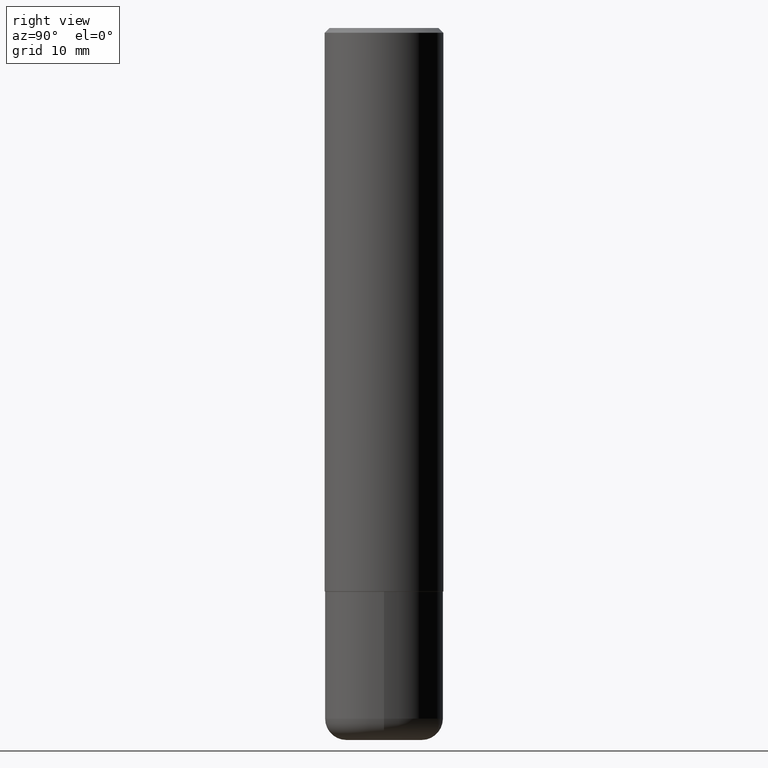
[diagram: clean part render]
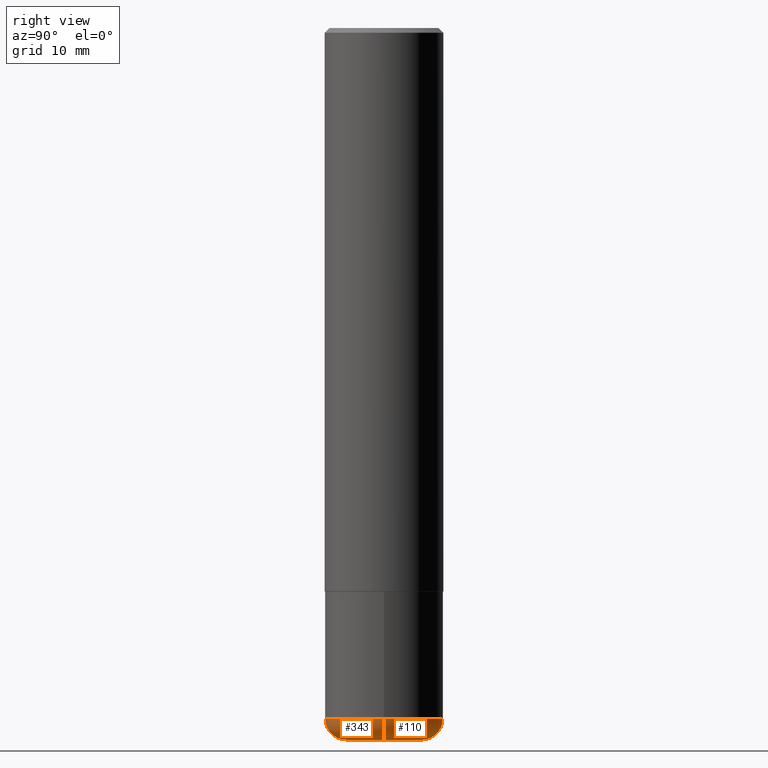
[diagram: same view with one multi-face feature highlighted, each face labeled with its STEP entity id]
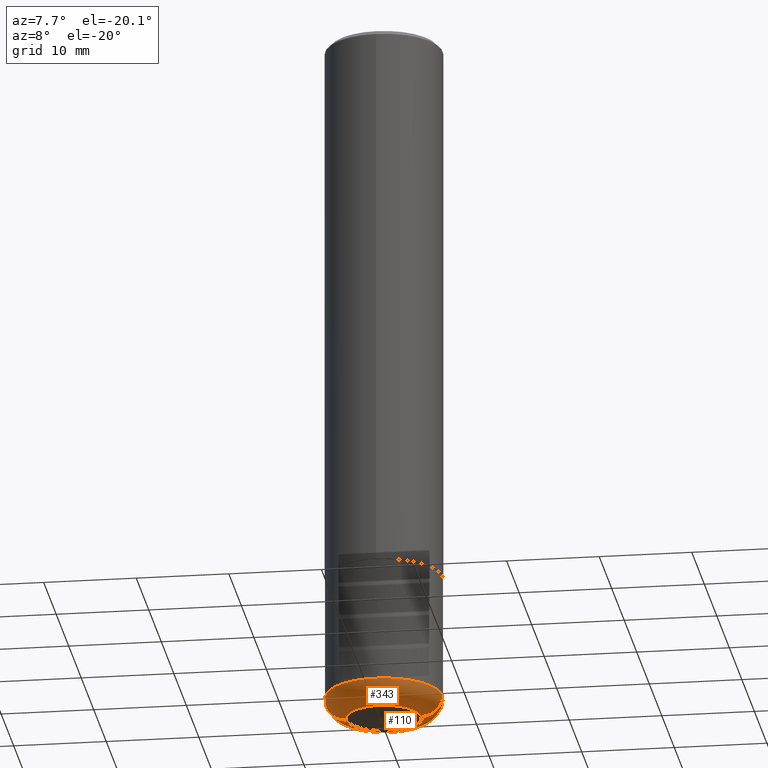
[diagram: same view with one multi-face feature highlighted, each face labeled with its STEP entity id]
A machine part, right view. The highlighted faces form ONE feature: a constant-radius fillet chain: 2 tangent blend faces with common blend radius 2.286 mm. The faces share edges in the B-rep.
A second angle (auxiliary view) of the same feature is appended — it is thin or edge-on in the first view.
Their STEP definitions:
[1] entity #110 (Torus):
#6 = CARTESIAN_POINT ( 'NONE',  ( 7.116314225998749245E-29, -1.016021069603355467E-14, -2.910000000000000586 ) ) ;
#12 = CARTESIAN_POINT ( 'NONE',  ( 0.1600000000000000033, -1.127748472446335797E-14, -2.910000000000000586 ) ) ;
#27 = DIRECTION ( 'NONE',  ( -6.982962677686266711E-15, -1.000000000000000000, 3.491481338843145583E-15 ) ) ;
#31 = DIRECTION ( 'NONE',  ( -2.445468806185136597E-29, 3.491481338843145583E-15, 1.000000000000000000 ) ) ;
#50 = VERTEX_POINT ( 'NONE', #60 ) ;
#51 = TOROIDAL_SURFACE ( 'NONE', #334, 0.1600000000000000033, 0.08999999999999964972 ) ;
#59 = EDGE_CURVE ( 'NONE', #402, #222, #249, .T. ) ;
#60 = CARTESIAN_POINT ( 'NONE',  ( 0.2499999999999998335, -1.190595136545512292E-14, -2.910000000000000586 ) ) ;
#61 = CARTESIAN_POINT ( 'NONE',  ( 0.1600000000000000033, -1.159171804495923808E-14, -2.999999999999999556 ) ) ;
#71 = ORIENTED_EDGE ( 'NONE', *, *, #286, .F. ) ;
#110 = ADVANCED_FACE ( 'NONE', ( #387 ), #51, .T. ) ;
#111 = AXIS2_PLACEMENT_3D ( 'NONE', #115, #204, #280 ) ;
#112 = AXIS2_PLACEMENT_3D ( 'NONE', #12, #27, #121 ) ;
#115 = CARTESIAN_POINT ( 'NONE',  ( 7.336406418555408669E-29, -1.047444401652943478E-14, -2.999999999999999556 ) ) ;
#121 = DIRECTION ( 'NONE',  ( 1.000000000000000000, -6.982962677686273810E-15, 0.000000000000000000 ) ) ;
#135 = CARTESIAN_POINT ( 'NONE',  ( -0.1600000000000000033, -9.023342318817394938E-15, -2.910000000000000586 ) ) ;
#138 = CARTESIAN_POINT ( 'NONE',  ( -0.1600000000000000033, -8.860714747973291991E-15, -2.999999999999999556 ) ) ;
#154 = EDGE_CURVE ( 'NONE', #222, #187, #157, .T. ) ;
#157 = CIRCLE ( 'NONE', #164, 0.08999999999999964972 ) ;
#164 = AXIS2_PLACEMENT_3D ( 'NONE', #135, #336, #179 ) ;
#171 = CARTESIAN_POINT ( 'NONE',  ( -0.2499999999999998335, -8.383853856633305780E-15, -2.910000000000000586 ) ) ;
#179 = DIRECTION ( 'NONE',  ( -1.000000000000000000, 7.105427357600996337E-15, 0.000000000000000000 ) ) ;
#187 = VERTEX_POINT ( 'NONE', #171 ) ;
#204 = DIRECTION ( 'NONE',  ( -2.445468806185136597E-29, 3.491481338843145583E-15, 1.000000000000000000 ) ) ;
#218 = AXIS2_PLACEMENT_3D ( 'NONE', #407, #31, #307 ) ;
#222 = VERTEX_POINT ( 'NONE', #138 ) ;
#249 = CIRCLE ( 'NONE', #111, 0.1600000000000000033 ) ;
#262 = CIRCLE ( 'NONE', #112, 0.08999999999999964972 ) ;
#266 = ORIENTED_EDGE ( 'NONE', *, *, #154, .T. ) ;
#271 = EDGE_CURVE ( 'NONE', #402, #50, #262, .T. ) ;
#280 = DIRECTION ( 'NONE',  ( 1.000000000000000000, -6.982962677686271444E-15, 0.000000000000000000 ) ) ;
#286 = EDGE_CURVE ( 'NONE', #50, #187, #311, .T. ) ;
#294 = ORIENTED_EDGE ( 'NONE', *, *, #271, .F. ) ;
#307 = DIRECTION ( 'NONE',  ( 1.000000000000000000, -6.982962677686270655E-15, 0.000000000000000000 ) ) ;
#311 = CIRCLE ( 'NONE', #218, 0.2500000000000000000 ) ;
#331 = EDGE_LOOP ( 'NONE', ( #357, #266, #71, #294 ) ) ;
#334 = AXIS2_PLACEMENT_3D ( 'NONE', #6, #397, #393 ) ;
#336 = DIRECTION ( 'NONE',  ( 7.105427357601001859E-15, 1.000000000000000000, -3.491481338843145583E-15 ) ) ;
#357 = ORIENTED_EDGE ( 'NONE', *, *, #59, .T. ) ;
#387 = FACE_OUTER_BOUND ( 'NONE', #331, .T. ) ;
#393 = DIRECTION ( 'NONE',  ( 1.000000000000000000, -6.982962677686265133E-15, 4.883557194083112340E-29 ) ) ;
#397 = DIRECTION ( 'NONE',  ( -2.445468806185136597E-29, 3.491481338843145583E-15, 1.000000000000000000 ) ) ;
#402 = VERTEX_POINT ( 'NONE', #61 ) ;
#407 = CARTESIAN_POINT ( 'NONE',  ( 7.116314225998749245E-29, -1.016021069603355467E-14, -2.910000000000000586 ) ) ;
[2] entity #343 (Torus):
#12 = CARTESIAN_POINT ( 'NONE',  ( 0.1600000000000000033, -1.127748472446335797E-14, -2.910000000000000586 ) ) ;
#13 = ORIENTED_EDGE ( 'NONE', *, *, #195, .F. ) ;
#24 = FACE_OUTER_BOUND ( 'NONE', #140, .T. ) ;
#27 = DIRECTION ( 'NONE',  ( -6.982962677686266711E-15, -1.000000000000000000, 3.491481338843145583E-15 ) ) ;
#47 = ORIENTED_EDGE ( 'NONE', *, *, #126, .T. ) ;
#50 = VERTEX_POINT ( 'NONE', #60 ) ;
#60 = CARTESIAN_POINT ( 'NONE',  ( 0.2499999999999998335, -1.190595136545512292E-14, -2.910000000000000586 ) ) ;
#61 = CARTESIAN_POINT ( 'NONE',  ( 0.1600000000000000033, -1.159171804495923808E-14, -2.999999999999999556 ) ) ;
#62 = CARTESIAN_POINT ( 'NONE',  ( 7.116314225998749245E-29, -1.016021069603355467E-14, -2.910000000000000586 ) ) ;
#67 = CIRCLE ( 'NONE', #300, 0.1600000000000000033 ) ;
#79 = ORIENTED_EDGE ( 'NONE', *, *, #154, .F. ) ;
#100 = DIRECTION ( 'NONE',  ( 1.000000000000000000, -6.982962677686271444E-15, 0.000000000000000000 ) ) ;
#112 = AXIS2_PLACEMENT_3D ( 'NONE', #12, #27, #121 ) ;
#121 = DIRECTION ( 'NONE',  ( 1.000000000000000000, -6.982962677686273810E-15, 0.000000000000000000 ) ) ;
#126 = EDGE_CURVE ( 'NONE', #222, #402, #67, .T. ) ;
#135 = CARTESIAN_POINT ( 'NONE',  ( -0.1600000000000000033, -9.023342318817394938E-15, -2.910000000000000586 ) ) ;
#136 = TOROIDAL_SURFACE ( 'NONE', #244, 0.1600000000000000033, 0.08999999999999964972 ) ;
#138 = CARTESIAN_POINT ( 'NONE',  ( -0.1600000000000000033, -8.860714747973291991E-15, -2.999999999999999556 ) ) ;
#140 = EDGE_LOOP ( 'NONE', ( #79, #47, #367, #13 ) ) ;
#154 = EDGE_CURVE ( 'NONE', #222, #187, #157, .T. ) ;
#157 = CIRCLE ( 'NONE', #164, 0.08999999999999964972 ) ;
#164 = AXIS2_PLACEMENT_3D ( 'NONE', #135, #336, #179 ) ;
#169 = CARTESIAN_POINT ( 'NONE',  ( 7.336406418555408669E-29, -1.047444401652943478E-14, -2.999999999999999556 ) ) ;
#171 = CARTESIAN_POINT ( 'NONE',  ( -0.2499999999999998335, -8.383853856633305780E-15, -2.910000000000000586 ) ) ;
#177 = DIRECTION ( 'NONE',  ( -2.445468806185136597E-29, 3.491481338843145583E-15, 1.000000000000000000 ) ) ;
#179 = DIRECTION ( 'NONE',  ( -1.000000000000000000, 7.105427357600996337E-15, 0.000000000000000000 ) ) ;
#182 = DIRECTION ( 'NONE',  ( 1.000000000000000000, -6.982962677686265133E-15, 4.883557194083112340E-29 ) ) ;
#187 = VERTEX_POINT ( 'NONE', #171 ) ;
#195 = EDGE_CURVE ( 'NONE', #187, #50, #325, .T. ) ;
#206 = AXIS2_PLACEMENT_3D ( 'NONE', #228, #177, #306 ) ;
#222 = VERTEX_POINT ( 'NONE', #138 ) ;
#228 = CARTESIAN_POINT ( 'NONE',  ( 7.116314225998749245E-29, -1.016021069603355467E-14, -2.910000000000000586 ) ) ;
#244 = AXIS2_PLACEMENT_3D ( 'NONE', #62, #382, #182 ) ;
#262 = CIRCLE ( 'NONE', #112, 0.08999999999999964972 ) ;
#271 = EDGE_CURVE ( 'NONE', #402, #50, #262, .T. ) ;
#300 = AXIS2_PLACEMENT_3D ( 'NONE', #169, #406, #100 ) ;
#306 = DIRECTION ( 'NONE',  ( 1.000000000000000000, -6.982962677686270655E-15, 0.000000000000000000 ) ) ;
#325 = CIRCLE ( 'NONE', #206, 0.2500000000000000000 ) ;
#336 = DIRECTION ( 'NONE',  ( 7.105427357601001859E-15, 1.000000000000000000, -3.491481338843145583E-15 ) ) ;
#343 = ADVANCED_FACE ( 'NONE', ( #24 ), #136, .T. ) ;
#367 = ORIENTED_EDGE ( 'NONE', *, *, #271, .T. ) ;
#382 = DIRECTION ( 'NONE',  ( -2.445468806185136597E-29, 3.491481338843145583E-15, 1.000000000000000000 ) ) ;
#402 = VERTEX_POINT ( 'NONE', #61 ) ;
#406 = DIRECTION ( 'NONE',  ( -2.445468806185136597E-29, 3.491481338843145583E-15, 1.000000000000000000 ) ) ;